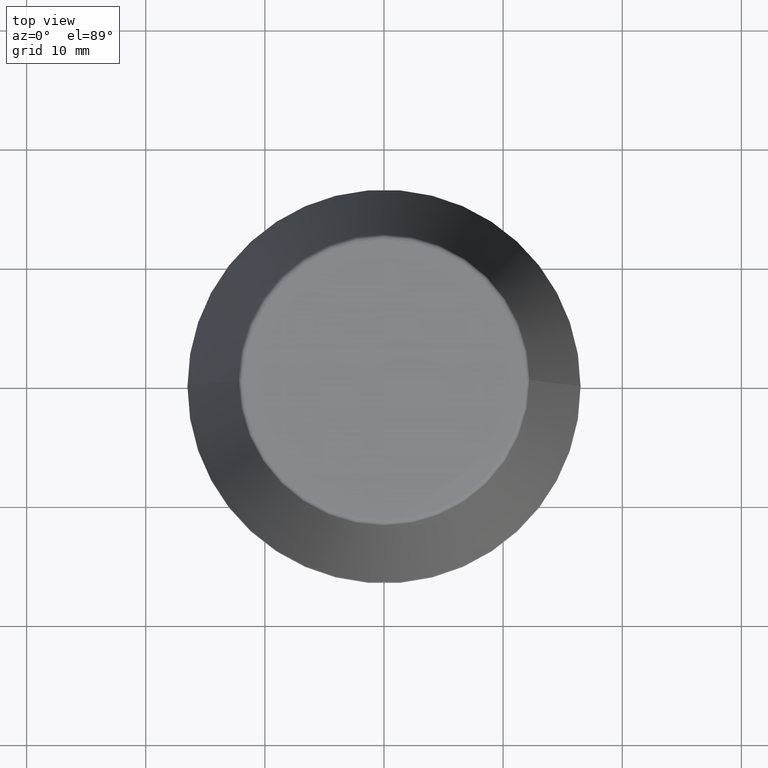
[diagram: clean part render]
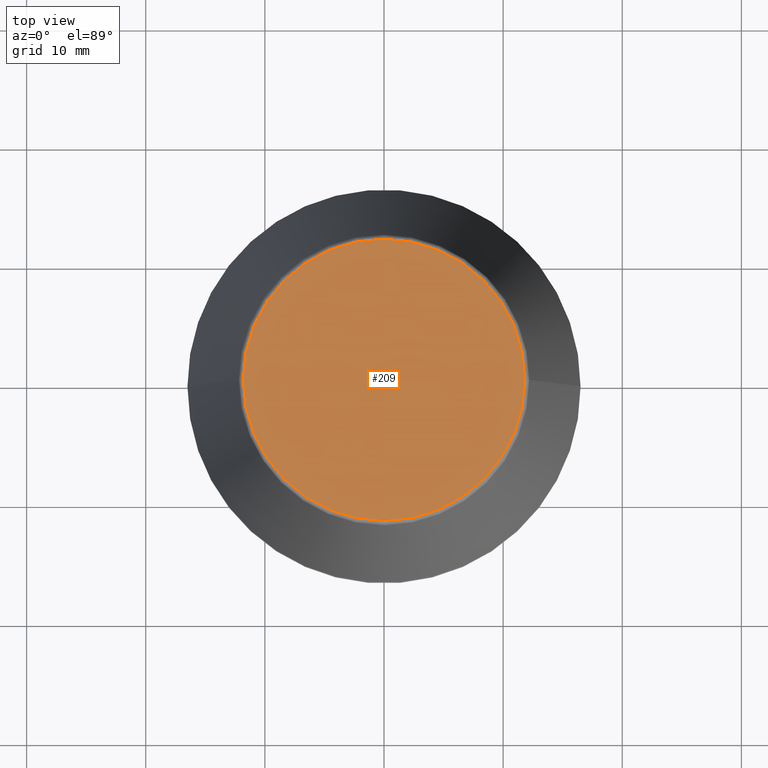
[diagram: same view with one face highlighted and labeled with its STEP entity id]
A machine part, top view. The second image highlights one B-rep face of the part: STEP entity #209.
In plain terms, the highlighted planar face has unit normal (0, 0, -1).
Its self-contained STEP definition (entity closure, byte-faithful):
#77 = EDGE_LOOP ( 'NONE', ( #160, #177 ) ) ;
#124 = CARTESIAN_POINT ( 'NONE',  ( 0.0000000000000000000, 0.0000000000000000000, 40.00000000000000700 ) ) ;
#125 = DIRECTION ( 'NONE',  ( 0.0000000000000000000, 0.0000000000000000000, -1.000000000000000000 ) ) ;
#127 = CARTESIAN_POINT ( 'NONE',  ( 0.0000000000000000000, 11.80989888411031400, 40.00000000000000700 ) ) ;
#134 = FACE_OUTER_BOUND ( 'NONE', #77, .T. ) ;
#156 = EDGE_CURVE ( 'NONE', #249, #205, #317, .T. ) ;
#160 = ORIENTED_EDGE ( 'NONE', *, *, #156, .T. ) ;
#177 = ORIENTED_EDGE ( 'NONE', *, *, #282, .T. ) ;
#185 = CIRCLE ( 'NONE', #226, 11.80989888411031400 ) ;
#192 = DIRECTION ( 'NONE',  ( -0.0000000000000000000, -0.0000000000000000000, 1.000000000000000000 ) ) ;
#205 = VERTEX_POINT ( 'NONE', #347 ) ;
#209 = ADVANCED_FACE ( 'NONE', ( #134 ), #301, .F. ) ;
#226 = AXIS2_PLACEMENT_3D ( 'NONE', #359, #192, #283 ) ;
#237 = CARTESIAN_POINT ( 'NONE',  ( 11.80989888411031400, 0.0000000000000000000, 40.00000000000000700 ) ) ;
#249 = VERTEX_POINT ( 'NONE', #237 ) ;
#282 = EDGE_CURVE ( 'NONE', #205, #249, #185, .T. ) ;
#283 = DIRECTION ( 'NONE',  ( 1.000000000000000000, 0.0000000000000000000, 0.0000000000000000000 ) ) ;
#294 = DIRECTION ( 'NONE',  ( -0.0000000000000000000, -0.0000000000000000000, 1.000000000000000000 ) ) ;
#301 = PLANE ( 'NONE',  #324 ) ;
#317 = CIRCLE ( 'NONE', #370, 11.80989888411031400 ) ;
#323 = DIRECTION ( 'NONE',  ( -1.000000000000000000, 0.0000000000000000000, -0.0000000000000000000 ) ) ;
#324 = AXIS2_PLACEMENT_3D ( 'NONE', #127, #125, #323 ) ;
#328 = DIRECTION ( 'NONE',  ( 1.000000000000000000, 0.0000000000000000000, 0.0000000000000000000 ) ) ;
#347 = CARTESIAN_POINT ( 'NONE',  ( -11.80989888411031400, 1.470550059081603400E-015, 40.00000000000000700 ) ) ;
#359 = CARTESIAN_POINT ( 'NONE',  ( 0.0000000000000000000, 0.0000000000000000000, 40.00000000000000700 ) ) ;
#370 = AXIS2_PLACEMENT_3D ( 'NONE', #124, #294, #328 ) ;